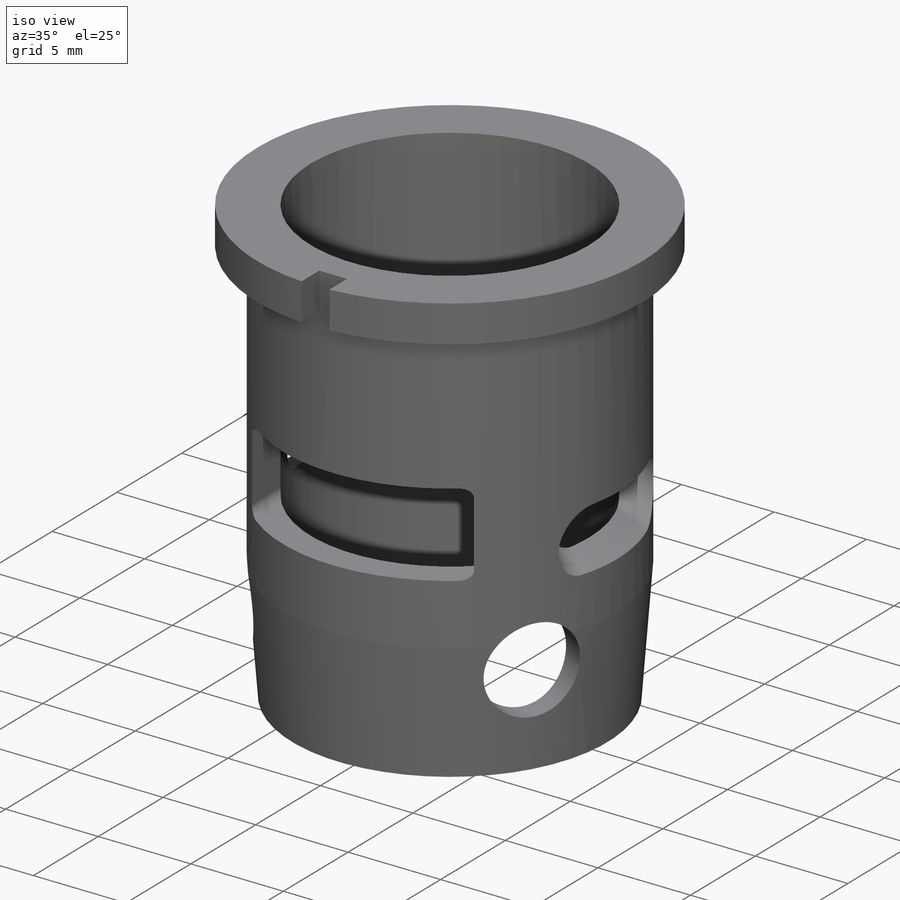
[diagram: iso view]
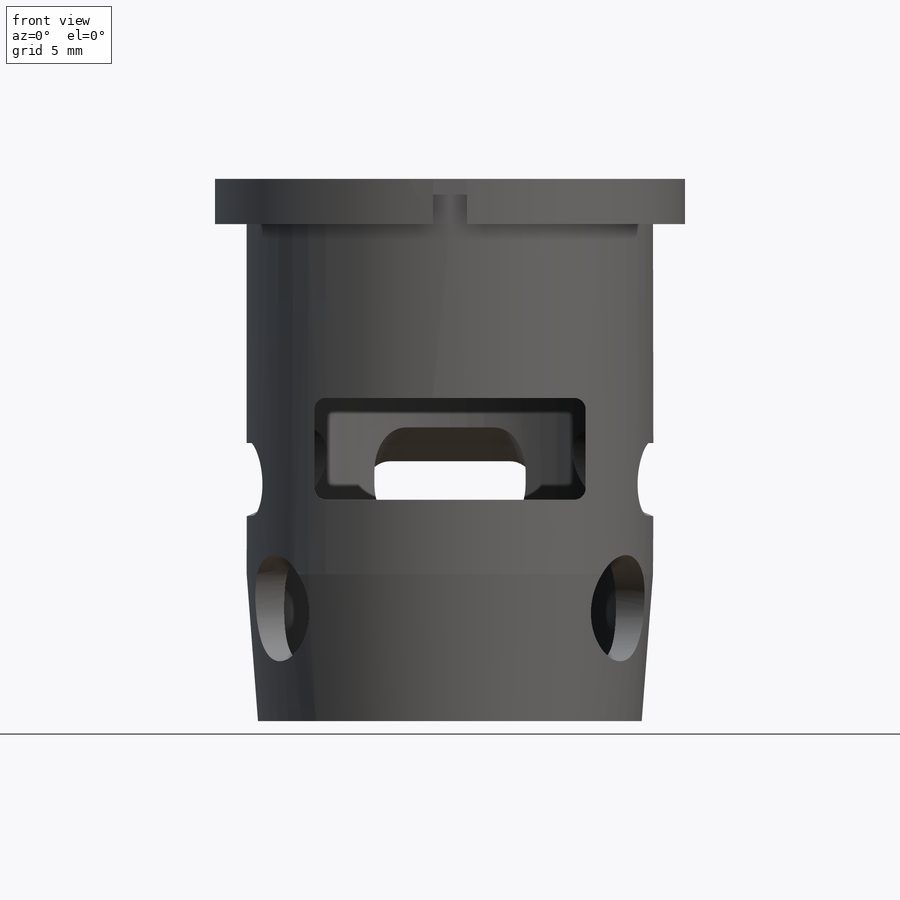
[diagram: front view]
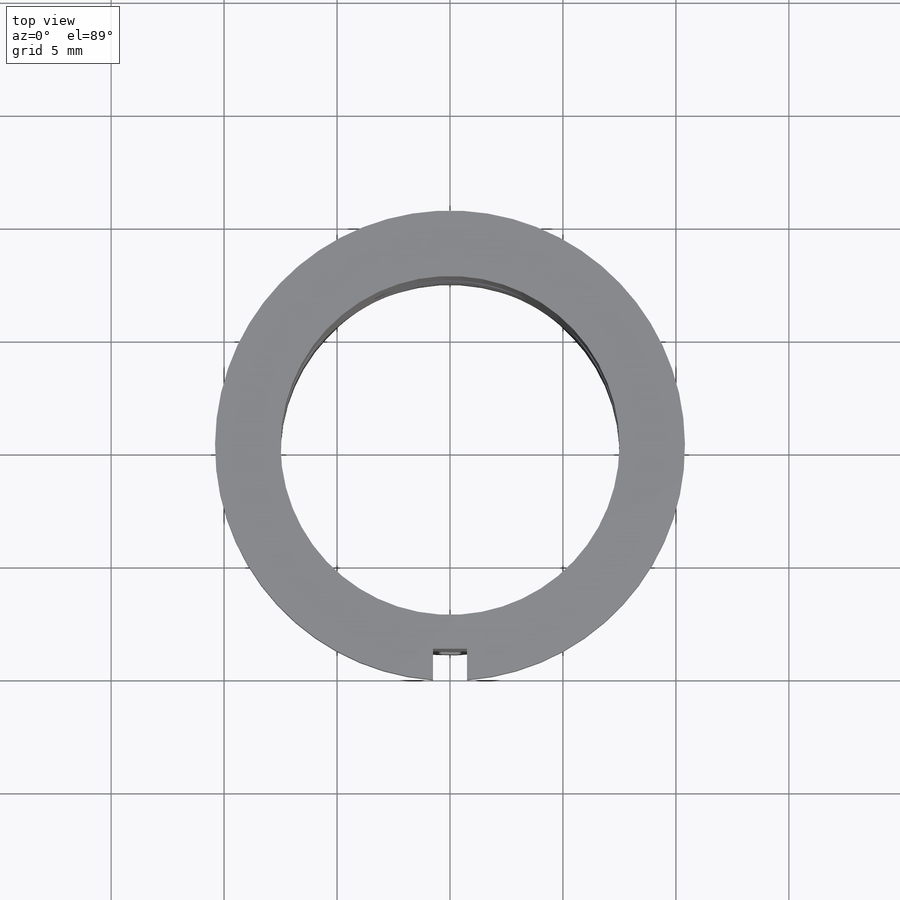
[diagram: top view]
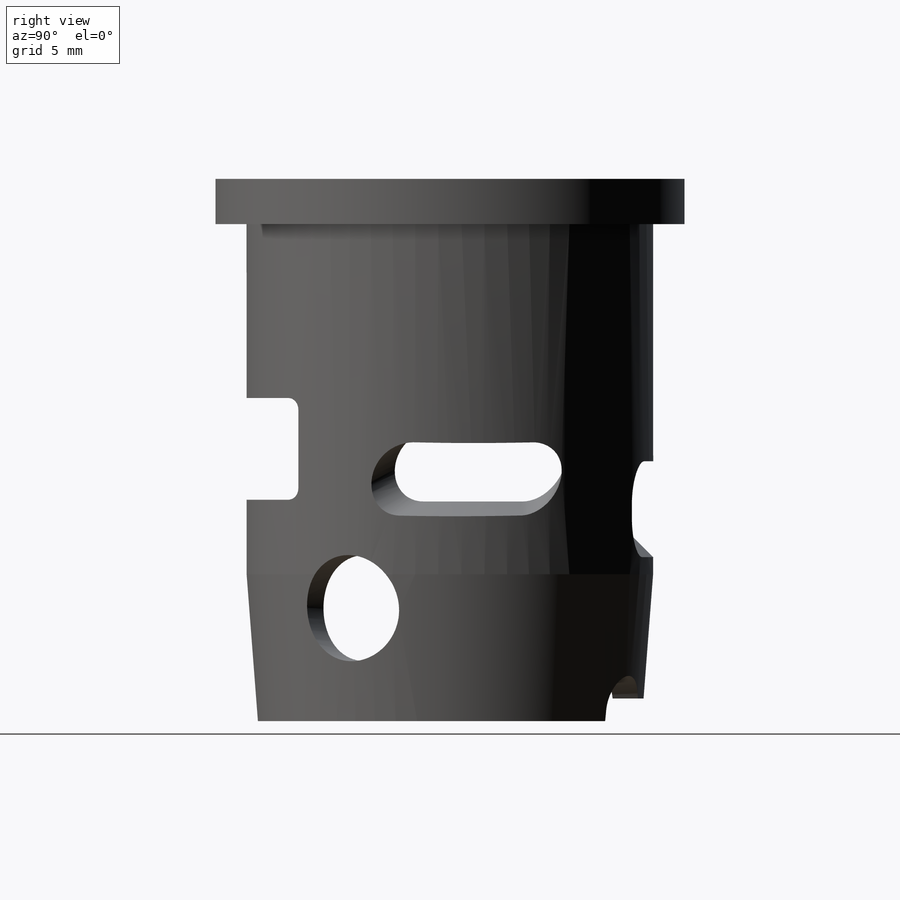
[diagram: right view]
SOLIDWORKS PART (.sldprt)
format: sldprt  version: not decoded by parser v0  size: 528,384 bytes
history: native  units: mm
features: sketch x21, plane x13, cut_extrude x6, cut_revolve x2, material x1, revolve x1, fillet x1, mirror x1, chamfer x1 (+13 scaffold rows collapsed)
feature tree (60):
  scaffold x13  (default folders/planes/origin — collapsed)
  material  "6061 Alloy"
  sketch  "Sketch1"  dims[D1=2.0mm D2=15.0mm D3=18.0mm D4=17.0mm D5=6.5mm D6=24.0mm D7=20.8mm]
  revolve  "Revolve1"  Angle=360deg
  sketch  "Sketch2"  dims[c1.D1=1.5mm c1.D2=10.0mm c1.D3=12.0mm c2.D2=9.0mm]
  cut_extrude  "Cut-Extrude1"  [1 undecoded]
  sketch  "Sketch3"  dims[D1=0.5mm D2=4.5mm D3=12.0mm D4=9.7mm]
  cut_extrude  "Cut-Extrude2"  [1 undecoded]
  sketch  "Sketch4"  dims[D1=1.5mm D2=10.0mm D3=0.5mm D4=1.0mm]
  cut_extrude  "Cut-Extrude3"  [1 undecoded]
  plane  "Plane1"  Offset=11mm
  sketch  "Sketch5"  dims[D4=8.5mm D1=8.0mm D2=1.5mm D3=1.5mm]
  sketch  "Sketch6"  dims[c1.D1=~2.992421mm c2.D1=~0.339384deg c3.D1=~3.727238mm c4.D1=45.0deg c4.D2=3.0mm]
  cut_revolve  "Cut-Revolve1"  Angle=53deg
  fillet  "Fillet1"  Radius=1.3mm
  sketch  "Sketch7"
  plane  "Plane2"
  sketch  "Sketch8"  dims[c1.D1=11.0mm c2.D1=70.0deg c2.D2=1.5mm c2.D3=12.0mm]
  plane  "Plane4"
  sketch  "Sketch10"  dims[D1=3.0mm D2=3.0mm D3=3.0mm]
  cut_extrude  "Cut-Extrude4"  [1 undecoded]
  plane  "Plane6"
  sketch  "Sketch12"  dims[c1.D1=~8.784403mm c2.D1=70.0deg c2.D2=8.0mm]
  plane  "Plane8"
  sketch  "Sketch14"  dims[D1=3.0mm D2=~3.178672mm]
  cut_extrude  "Cut-Extrude6"  [1 undecoded]
  plane  "Plane10"
  sketch  "Sketch18"
  plane  "Plane11"
  sketch  "Sketch19"
  plane  "Plane12"
  sketch  "Sketch20"  dims[D1=0.2mm]
  plane  "Plane13"
  sketch  "Sketch21"
  plane  "Plane14"
  sketch  "Sketch22"  dims[D1=3.0mm D2=5.0mm D3=3.0mm]
  cut_revolve  "Cut-Revolve2"  Angle=360deg
  plane  "Plane15"
  sketch  "Sketch23"  dims[D2=4.7mm D1=19.0mm]
  cut_extrude  "Cut-Extrude7"  [1 undecoded]
  mirror  "Mirror3"
  sketch  "Sketch24"
  sketch  "Sketch25"
  plane  "Plane16"
  sketch  "Sketch26"
  plane  "Plane17"
  sketch  "Sketch27"
  chamfer  "Chamfer1"  Distance=0.3mm
decode coverage: 18 of 33 modeling features carry decoded parameters
note: ~ marks probable driven/reference dimensions
note: 6 parameter values undecoded
summary: no parameter record found for 6 features
note: suppression state not decoded; provenance and decode notes live in map.json
